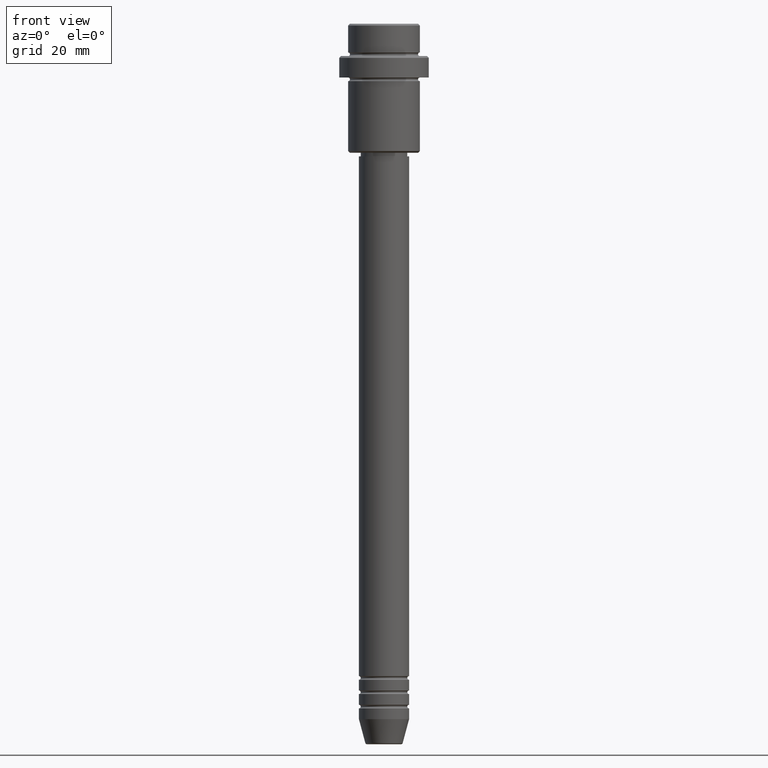
[diagram: clean part render]
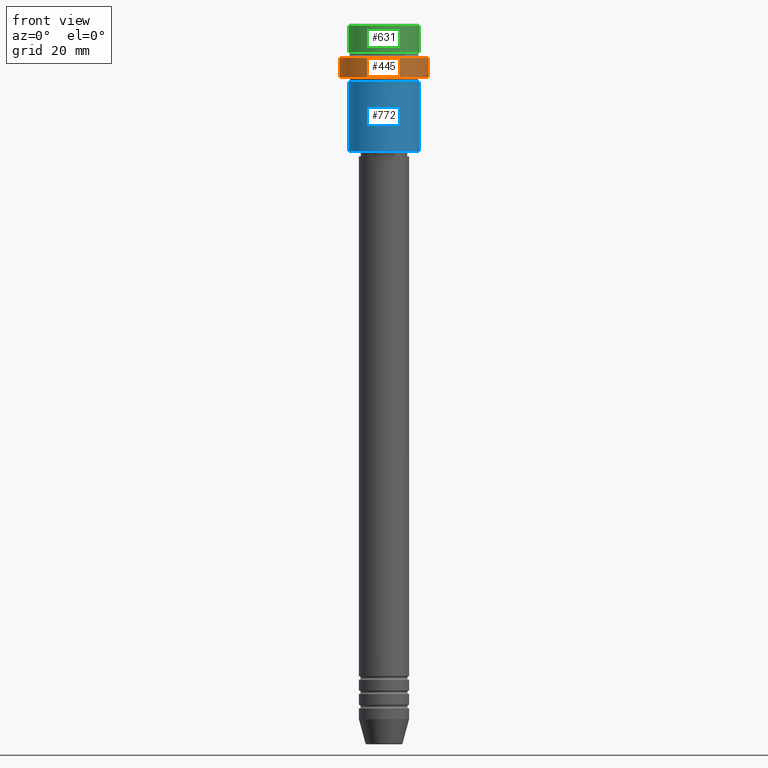
[diagram: same view with three faces highlighted in distinct colors, each labeled with its STEP entity id]
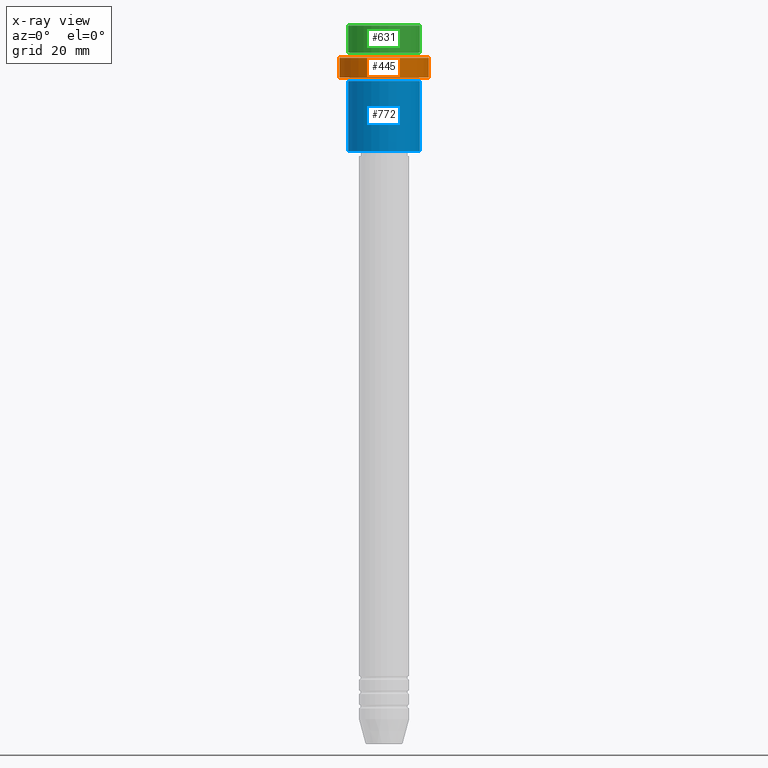
[diagram: x-ray of the same camera — body ghosted, the three highlighted faces saturated]
A machine part, front view with three faces highlighted in distinct colors.
The next image is the same camera in x-ray (body ghosted, the three faces saturated) — at least one of them is partly hidden behind the body in this view.
Their STEP definitions:

[orange] entity #445 — the highlighted cylindrical surface (partial cylindrical patch) has radius 12.5 mm, axis along (-0, -0, 1).
#82 = FACE_OUTER_BOUND ( 'NONE', #911, .T. ) ;
#93 = DIRECTION ( 'NONE',  ( 1.000000000000000000, 0.000000000000000000, 0.000000000000000000 ) ) ;
#100 = DIRECTION ( 'NONE',  ( -0.000000000000000000, -0.000000000000000000, 1.000000000000000000 ) ) ;
#102 = CIRCLE ( 'NONE', #744, 12.50000000000000000 ) ;
#117 = EDGE_CURVE ( 'NONE', #693, #415, #721, .T. ) ;
#162 = CARTESIAN_POINT ( 'NONE',  ( 0.000000000000000000, 0.000000000000000000, -15.00000000000000000 ) ) ;
#181 = ORIENTED_EDGE ( 'NONE', *, *, #1042, .T. ) ;
#193 = EDGE_CURVE ( 'NONE', #693, #928, #102, .T. ) ;
#222 = CIRCLE ( 'NONE', #1262, 12.50000000000000000 ) ;
#263 = LINE ( 'NONE', #1341, #596 ) ;
#288 = ORIENTED_EDGE ( 'NONE', *, *, #117, .F. ) ;
#305 = CARTESIAN_POINT ( 'NONE',  ( -12.50000000000000000, 1.530808498934191521E-15, -9.499999999999976907 ) ) ;
#387 = DIRECTION ( 'NONE',  ( 1.000000000000000000, 0.000000000000000000, 0.000000000000000000 ) ) ;
#415 = VERTEX_POINT ( 'NONE', #305 ) ;
#445 = ADVANCED_FACE ( 'NONE', ( #82 ), #1298, .T. ) ;
#459 = DIRECTION ( 'NONE',  ( -0.000000000000000000, -0.000000000000000000, 1.000000000000000000 ) ) ;
#497 = DIRECTION ( 'NONE',  ( -0.000000000000000000, -0.000000000000000000, 1.000000000000000000 ) ) ;
#527 = CARTESIAN_POINT ( 'NONE',  ( 0.000000000000000000, 0.000000000000000000, -9.499999999999976907 ) ) ;
#543 = ORIENTED_EDGE ( 'NONE', *, *, #1210, .T. ) ;
#586 = DIRECTION ( 'NONE',  ( -0.000000000000000000, -0.000000000000000000, 1.000000000000000000 ) ) ;
#596 = VECTOR ( 'NONE', #459, 1000.000000000000000 ) ;
#623 = CARTESIAN_POINT ( 'NONE',  ( 0.000000000000000000, 0.000000000000000000, 0.000000000000000000 ) ) ;
#630 = DIRECTION ( 'NONE',  ( 1.000000000000000000, 0.000000000000000000, 0.000000000000000000 ) ) ;
#633 = CARTESIAN_POINT ( 'NONE',  ( 12.50000000000000000, 0.000000000000000000, -15.00000000000000000 ) ) ;
#693 = VERTEX_POINT ( 'NONE', #1216 ) ;
#721 = LINE ( 'NONE', #822, #1382 ) ;
#744 = AXIS2_PLACEMENT_3D ( 'NONE', #162, #497, #387 ) ;
#822 = CARTESIAN_POINT ( 'NONE',  ( -12.50000000000000000, 1.530808498934191521E-15, 0.000000000000000000 ) ) ;
#884 = DIRECTION ( 'NONE',  ( 0.000000000000000000, 0.000000000000000000, -1.000000000000000000 ) ) ;
#911 = EDGE_LOOP ( 'NONE', ( #288, #1276, #543, #181 ) ) ;
#928 = VERTEX_POINT ( 'NONE', #633 ) ;
#963 = VERTEX_POINT ( 'NONE', #1393 ) ;
#1042 = EDGE_CURVE ( 'NONE', #963, #415, #222, .T. ) ;
#1210 = EDGE_CURVE ( 'NONE', #928, #963, #263, .T. ) ;
#1216 = CARTESIAN_POINT ( 'NONE',  ( -12.50000000000000000, 1.530808498934191521E-15, -15.00000000000000000 ) ) ;
#1262 = AXIS2_PLACEMENT_3D ( 'NONE', #527, #884, #630 ) ;
#1276 = ORIENTED_EDGE ( 'NONE', *, *, #193, .T. ) ;
#1298 = CYLINDRICAL_SURFACE ( 'NONE', #1375, 12.50000000000000000 ) ;
#1341 = CARTESIAN_POINT ( 'NONE',  ( 12.50000000000000000, 0.000000000000000000, 0.000000000000000000 ) ) ;
#1375 = AXIS2_PLACEMENT_3D ( 'NONE', #623, #100, #93 ) ;
#1382 = VECTOR ( 'NONE', #586, 1000.000000000000000 ) ;
#1393 = CARTESIAN_POINT ( 'NONE',  ( 12.50000000000000000, 0.000000000000000000, -9.499999999999976907 ) ) ;

[blue] entity #772 — the highlighted cylindrical surface (edge-blend (fillet) strip) has radius 10 mm, axis along (-0, -0, 1).
#24 = LINE ( 'NONE', #124, #1256 ) ;
#26 = CARTESIAN_POINT ( 'NONE',  ( 0.000000000000000000, 0.000000000000000000, -35.49999999999995026 ) ) ;
#69 = CARTESIAN_POINT ( 'NONE',  ( -9.999999999999998224, 1.224646799147353059E-15, -35.49999999999995026 ) ) ;
#87 = CARTESIAN_POINT ( 'NONE',  ( 0.000000000000000000, 0.000000000000000000, -16.00000000000000000 ) ) ;
#124 = CARTESIAN_POINT ( 'NONE',  ( -9.999999999999998224, 1.224646799147353059E-15, 0.000000000000000000 ) ) ;
#219 = DIRECTION ( 'NONE',  ( -0.000000000000000000, -0.000000000000000000, 1.000000000000000000 ) ) ;
#314 = VERTEX_POINT ( 'NONE', #69 ) ;
#323 = CARTESIAN_POINT ( 'NONE',  ( -9.999999999999998224, 1.224646799147353059E-15, -16.00000000000000000 ) ) ;
#342 = LINE ( 'NONE', #674, #359 ) ;
#357 = ORIENTED_EDGE ( 'NONE', *, *, #1207, .T. ) ;
#359 = VECTOR ( 'NONE', #546, 1000.000000000000000 ) ;
#546 = DIRECTION ( 'NONE',  ( -0.000000000000000000, -0.000000000000000000, 1.000000000000000000 ) ) ;
#564 = DIRECTION ( 'NONE',  ( -0.000000000000000000, -0.000000000000000000, 1.000000000000000000 ) ) ;
#584 = EDGE_LOOP ( 'NONE', ( #726, #357, #889, #1185 ) ) ;
#666 = CIRCLE ( 'NONE', #1092, 9.999999999999998224 ) ;
#674 = CARTESIAN_POINT ( 'NONE',  ( 9.999999999999998224, 0.000000000000000000, 0.000000000000000000 ) ) ;
#698 = VERTEX_POINT ( 'NONE', #323 ) ;
#719 = EDGE_CURVE ( 'NONE', #314, #698, #24, .T. ) ;
#726 = ORIENTED_EDGE ( 'NONE', *, *, #719, .F. ) ;
#735 = DIRECTION ( 'NONE',  ( 1.000000000000000000, 0.000000000000000000, 0.000000000000000000 ) ) ;
#753 = EDGE_CURVE ( 'NONE', #810, #1060, #342, .T. ) ;
#770 = DIRECTION ( 'NONE',  ( 1.000000000000000000, 0.000000000000000000, 0.000000000000000000 ) ) ;
#772 = ADVANCED_FACE ( 'NONE', ( #1093 ), #1327, .T. ) ;
#781 = CIRCLE ( 'NONE', #1145, 9.999999999999998224 ) ;
#810 = VERTEX_POINT ( 'NONE', #1130 ) ;
#819 = DIRECTION ( 'NONE',  ( -1.000000000000000000, 0.000000000000000000, 0.000000000000000000 ) ) ;
#889 = ORIENTED_EDGE ( 'NONE', *, *, #753, .T. ) ;
#953 = CARTESIAN_POINT ( 'NONE',  ( 9.999999999999998224, 0.000000000000000000, -16.00000000000000000 ) ) ;
#1060 = VERTEX_POINT ( 'NONE', #953 ) ;
#1086 = EDGE_CURVE ( 'NONE', #698, #1060, #666, .T. ) ;
#1092 = AXIS2_PLACEMENT_3D ( 'NONE', #87, #1399, #735 ) ;
#1093 = FACE_OUTER_BOUND ( 'NONE', #584, .T. ) ;
#1105 = DIRECTION ( 'NONE',  ( -0.000000000000000000, -0.000000000000000000, 1.000000000000000000 ) ) ;
#1130 = CARTESIAN_POINT ( 'NONE',  ( 9.999999999999998224, 0.000000000000000000, -35.49999999999995026 ) ) ;
#1145 = AXIS2_PLACEMENT_3D ( 'NONE', #26, #1105, #819 ) ;
#1185 = ORIENTED_EDGE ( 'NONE', *, *, #1086, .F. ) ;
#1207 = EDGE_CURVE ( 'NONE', #314, #810, #781, .T. ) ;
#1221 = CARTESIAN_POINT ( 'NONE',  ( 0.000000000000000000, 0.000000000000000000, 0.000000000000000000 ) ) ;
#1256 = VECTOR ( 'NONE', #219, 1000.000000000000000 ) ;
#1327 = CYLINDRICAL_SURFACE ( 'NONE', #1349, 9.999999999999998224 ) ;
#1349 = AXIS2_PLACEMENT_3D ( 'NONE', #1221, #564, #770 ) ;
#1399 = DIRECTION ( 'NONE',  ( -0.000000000000000000, -0.000000000000000000, 1.000000000000000000 ) ) ;

[green] entity #631 — the highlighted cylindrical surface (edge-blend (fillet) strip) has radius 10 mm, axis along (-0, -0, 1).
#23 = VECTOR ( 'NONE', #78, 1000.000000000000000 ) ;
#29 = EDGE_CURVE ( 'NONE', #466, #1140, #985, .T. ) ;
#52 = CIRCLE ( 'NONE', #1237, 9.999999999999998224 ) ;
#72 = ORIENTED_EDGE ( 'NONE', *, *, #29, .T. ) ;
#77 = CIRCLE ( 'NONE', #1054, 9.999999999999998224 ) ;
#78 = DIRECTION ( 'NONE',  ( -0.000000000000000000, -0.000000000000000000, 1.000000000000000000 ) ) ;
#97 = CARTESIAN_POINT ( 'NONE',  ( 0.000000000000000000, 0.000000000000000000, 0.000000000000000000 ) ) ;
#99 = CARTESIAN_POINT ( 'NONE',  ( 9.999999999999998224, 0.000000000000000000, -0.4999999999999691358 ) ) ;
#143 = CARTESIAN_POINT ( 'NONE',  ( -9.999999999999998224, 1.224646799147353059E-15, 0.000000000000000000 ) ) ;
#197 = FACE_OUTER_BOUND ( 'NONE', #535, .T. ) ;
#243 = CARTESIAN_POINT ( 'NONE',  ( 9.999999999999998224, 0.000000000000000000, 0.000000000000000000 ) ) ;
#245 = CARTESIAN_POINT ( 'NONE',  ( -9.999999999999998224, 1.224646799147353059E-15, -7.999999999999998224 ) ) ;
#438 = VECTOR ( 'NONE', #1119, 1000.000000000000000 ) ;
#466 = VERTEX_POINT ( 'NONE', #954 ) ;
#501 = DIRECTION ( 'NONE',  ( 0.000000000000000000, 0.000000000000000000, -1.000000000000000000 ) ) ;
#510 = DIRECTION ( 'NONE',  ( 1.000000000000000000, 0.000000000000000000, 0.000000000000000000 ) ) ;
#535 = EDGE_LOOP ( 'NONE', ( #616, #798, #72, #1122 ) ) ;
#542 = DIRECTION ( 'NONE',  ( -0.000000000000000000, -0.000000000000000000, 1.000000000000000000 ) ) ;
#616 = ORIENTED_EDGE ( 'NONE', *, *, #1398, .F. ) ;
#617 = CARTESIAN_POINT ( 'NONE',  ( 0.000000000000000000, 0.000000000000000000, -7.999999999999998224 ) ) ;
#621 = LINE ( 'NONE', #143, #23 ) ;
#631 = ADVANCED_FACE ( 'NONE', ( #197 ), #1070, .T. ) ;
#725 = DIRECTION ( 'NONE',  ( 1.000000000000000000, 0.000000000000000000, 0.000000000000000000 ) ) ;
#736 = AXIS2_PLACEMENT_3D ( 'NONE', #97, #542, #947 ) ;
#739 = VERTEX_POINT ( 'NONE', #883 ) ;
#798 = ORIENTED_EDGE ( 'NONE', *, *, #1343, .T. ) ;
#818 = VERTEX_POINT ( 'NONE', #245 ) ;
#883 = CARTESIAN_POINT ( 'NONE',  ( -9.999999999999998224, 1.224646799147353059E-15, -0.4999999999999691358 ) ) ;
#947 = DIRECTION ( 'NONE',  ( 1.000000000000000000, 0.000000000000000000, 0.000000000000000000 ) ) ;
#954 = CARTESIAN_POINT ( 'NONE',  ( 9.999999999999998224, 0.000000000000000000, -7.999999999999998224 ) ) ;
#985 = LINE ( 'NONE', #243, #438 ) ;
#1054 = AXIS2_PLACEMENT_3D ( 'NONE', #1388, #501, #725 ) ;
#1070 = CYLINDRICAL_SURFACE ( 'NONE', #736, 9.999999999999998224 ) ;
#1119 = DIRECTION ( 'NONE',  ( -0.000000000000000000, -0.000000000000000000, 1.000000000000000000 ) ) ;
#1122 = ORIENTED_EDGE ( 'NONE', *, *, #1338, .T. ) ;
#1140 = VERTEX_POINT ( 'NONE', #99 ) ;
#1161 = DIRECTION ( 'NONE',  ( -0.000000000000000000, -0.000000000000000000, 1.000000000000000000 ) ) ;
#1237 = AXIS2_PLACEMENT_3D ( 'NONE', #617, #1161, #510 ) ;
#1338 = EDGE_CURVE ( 'NONE', #1140, #739, #77, .T. ) ;
#1343 = EDGE_CURVE ( 'NONE', #818, #466, #52, .T. ) ;
#1388 = CARTESIAN_POINT ( 'NONE',  ( 0.000000000000000000, 0.000000000000000000, -0.4999999999999691358 ) ) ;
#1398 = EDGE_CURVE ( 'NONE', #818, #739, #621, .T. ) ;